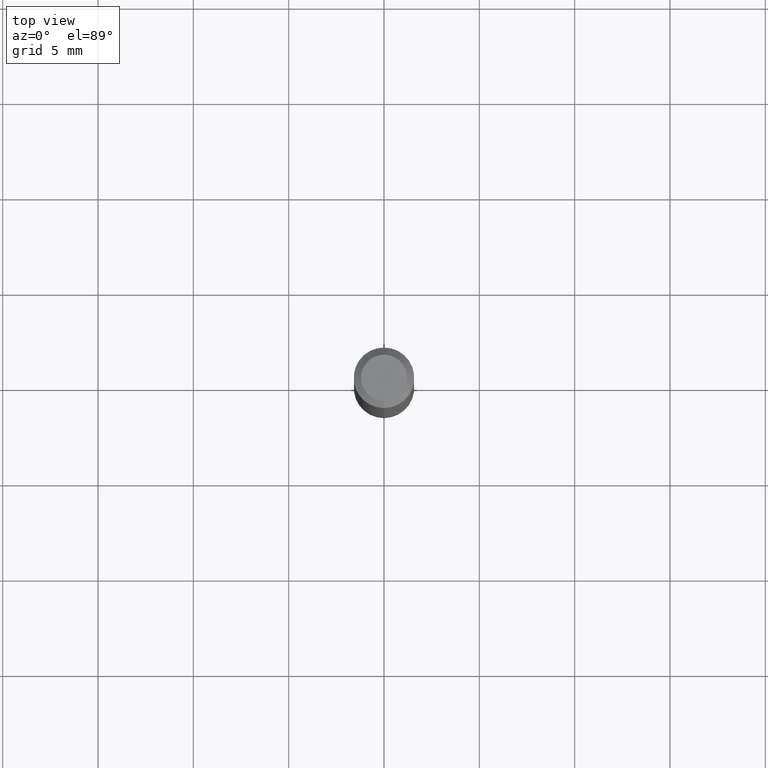
[diagram: clean part render]
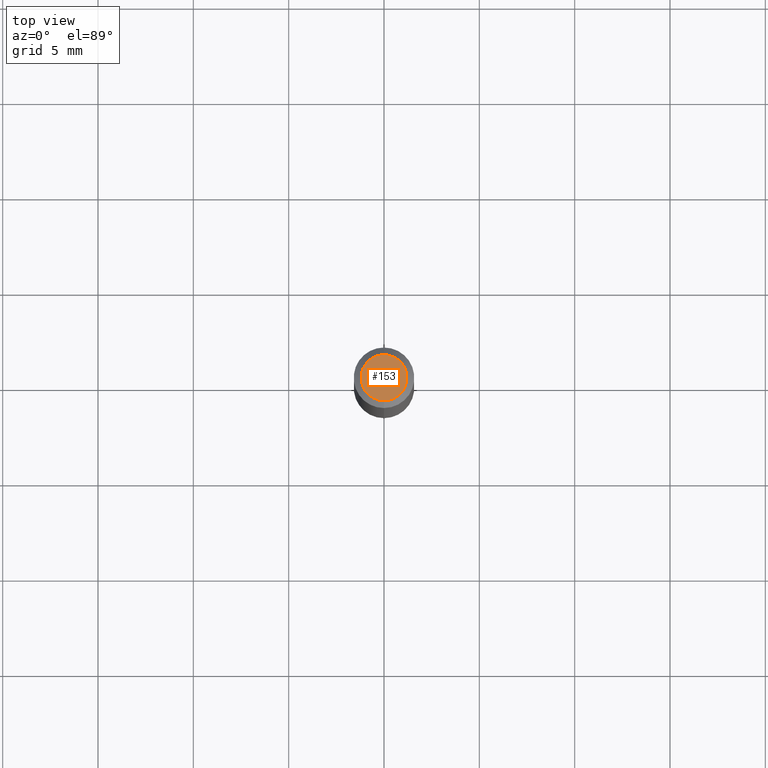
[diagram: same view with one face highlighted and labeled with its STEP entity id]
A machine part, top view. The second image highlights one B-rep face of the part: STEP entity #153.
In plain terms, the highlighted planar face has unit normal (0, -0, -1).
Its self-contained STEP definition (entity closure, byte-faithful):
#23 = CIRCLE ( 'NONE', #201, 0.04749999999999999362 ) ;
#29 = DIRECTION ( 'NONE',  ( -6.982962677686266711E-15, -1.000000000000000000, 3.491722722635760763E-15 ) ) ;
#33 = ORIENTED_EDGE ( 'NONE', *, *, #165, .T. ) ;
#71 = DIRECTION ( 'NONE',  ( 6.982962677686265922E-15, 1.000000000000000000, -3.491722722635760763E-15 ) ) ;
#74 = ORIENTED_EDGE ( 'NONE', *, *, #365, .T. ) ;
#95 = CARTESIAN_POINT ( 'NONE',  ( -3.773273898774340269E-16, -0.04749999999999999362, -1.622786526568118338E-16 ) ) ;
#101 = CIRCLE ( 'NONE', #396, 0.04749999999999999362 ) ;
#133 = CARTESIAN_POINT ( 'NONE',  ( 3.840629472727447874E-16, 0.04749999999999999362, -4.939923113072091241E-16 ) ) ;
#146 = PLANE ( 'NONE',  #420 ) ;
#153 = ADVANCED_FACE ( 'NONE', ( #499 ), #146, .F. ) ;
#155 = DIRECTION ( 'NONE',  ( -2.445300248783653263E-29, 3.491722722635761158E-15, 1.000000000000000000 ) ) ;
#165 = EDGE_CURVE ( 'NONE', #469, #481, #23, .T. ) ;
#196 = DIRECTION ( 'NONE',  ( -6.982962677686266711E-15, -1.000000000000000000, 3.491722722635760763E-15 ) ) ;
#201 = AXIS2_PLACEMENT_3D ( 'NONE', #417, #300, #29 ) ;
#239 = CARTESIAN_POINT ( 'NONE',  ( 8.023897757253542570E-45, -1.145758118539623279E-30, -3.281354819820104789E-16 ) ) ;
#300 = DIRECTION ( 'NONE',  ( -2.445300248783653263E-29, 3.491722722635761158E-15, 1.000000000000000000 ) ) ;
#336 = CARTESIAN_POINT ( 'NONE',  ( 3.316907271900976096E-16, 0.04749999999999999362, -3.299245703162038599E-16 ) ) ;
#365 = EDGE_CURVE ( 'NONE', #481, #469, #101, .T. ) ;
#396 = AXIS2_PLACEMENT_3D ( 'NONE', #239, #155, #196 ) ;
#417 = CARTESIAN_POINT ( 'NONE',  ( 8.023897757253542570E-45, -1.145758118539623279E-30, -3.281354819820104789E-16 ) ) ;
#420 = AXIS2_PLACEMENT_3D ( 'NONE', #336, #492, #71 ) ;
#439 = EDGE_LOOP ( 'NONE', ( #33, #74 ) ) ;
#469 = VERTEX_POINT ( 'NONE', #133 ) ;
#481 = VERTEX_POINT ( 'NONE', #95 ) ;
#492 = DIRECTION ( 'NONE',  ( 2.445300248783653263E-29, -3.491722722635760763E-15, -1.000000000000000000 ) ) ;
#499 = FACE_OUTER_BOUND ( 'NONE', #439, .T. ) ;